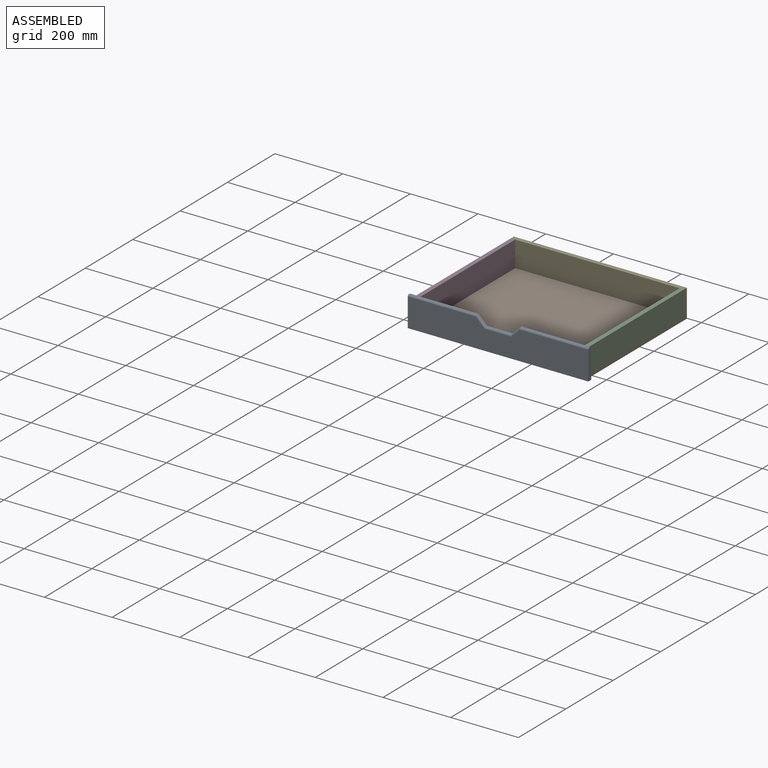
[diagram: assembled view]
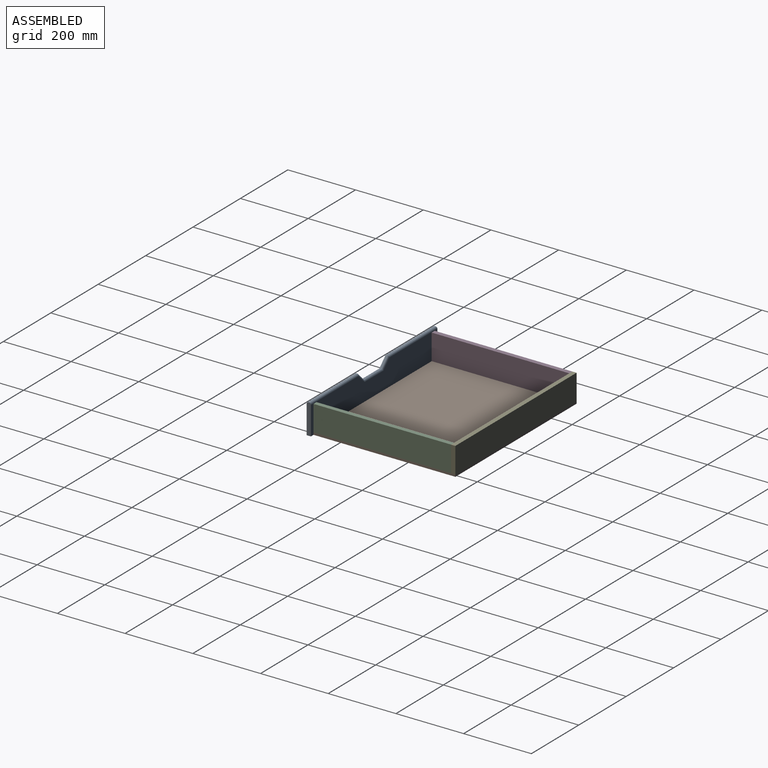
[diagram: assembled view, second angle]
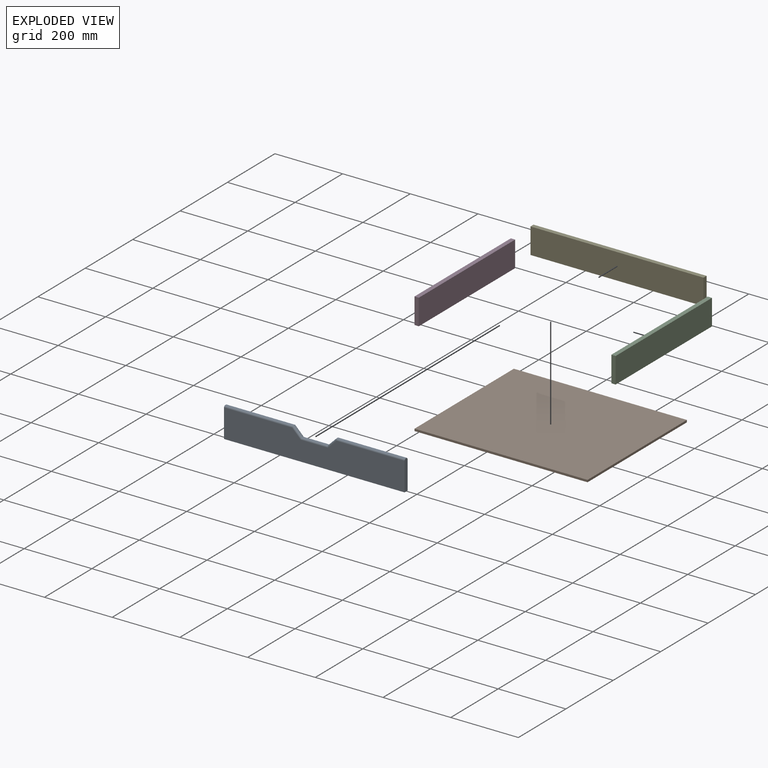
[diagram: exploded view]
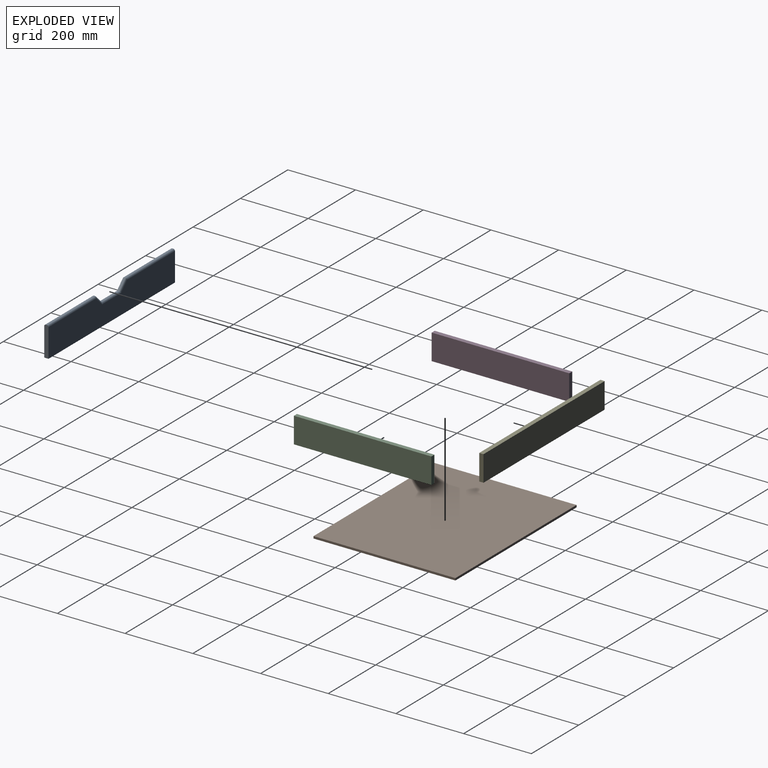
[diagram: exploded view, second angle]
ASSEMBLY  parts=5 mates=4
PART A: 20 faces, bbox 533.4x12.7x88.9 mm
  f0: plane 203.2x2.54mm, normal (0,0,1), area 516.1mm2, adj f6,f7,f14,f17
  f1: plane 533.4x83.82mm, normal (0,-1,0), area 42022.1mm2, adj f4,f5,f6,f10,f11,f12,f13,f14
  f2: plane 533.4x83.82mm, normal (0,1,0), area 42022.1mm2, adj f4,f5,f6,f15,f16,f17,f18,f19
  f3: plane 203.2x2.54mm, normal (0,0,1), area 516.1mm2, adj f4,f8,f10,f15
  f4: plane 88.9x12.7mm, normal (-1,0,0), area 1118mm2, adj f1,f2,f3,f5,f10,f15
  f5: plane 533.4x12.7mm, normal (0,0,-1), area 6774.2mm2, adj f1,f2,f4,f6
  f6: plane 88.9x12.7mm, normal (1,0,0), area 1118mm2, adj f0,f1,f2,f5,f14,f17
  f7: plane 25.4x25.4mm, normal (-0.71,0,0.71), area 91.2mm2, adj f0,f9,f13,f19
  f8: plane 25.4x25.4mm, normal (0.71,0,0.71), area 91.2mm2, adj f3,f9,f11,f16
  f9: plane 76.2x2.54mm, normal (0,0,1), area 193.5mm2, adj f7,f8,f12,f18
  f10: cylinder r=5.08mm len=203.2mm, axis (1,0,0), area 1615.4mm2, adj f1,f3,f4,f11
  f11: cylinder r=5.08mm len=30.48mm, axis (-0.71,0,0.71), area 286.6mm2, adj f1,f8,f10,f12
  f12: cylinder r=5.08mm len=80.41mm, axis (-1,0,0), area 620.3mm2, adj f1,f9,f11,f13
  f13: cylinder r=5.08mm len=30.48mm, axis (-0.71,0,-0.71), area 286.6mm2, adj f1,f7,f12,f14
  f14: cylinder r=5.08mm len=203.2mm, axis (1,0,0), area 1615.4mm2, adj f0,f1,f6,f13
  f15: cylinder r=5.08mm len=203.2mm, axis (-1,0,0), area 1615.4mm2, adj f2,f3,f4,f16
  f16: cylinder r=5.08mm len=30.48mm, axis (0.71,0,-0.71), area 286.6mm2, adj f2,f8,f15,f18
  f17: cylinder r=5.08mm len=203.2mm, axis (-1,0,0), area 1615.4mm2, adj f0,f2,f6,f19
  f18: cylinder r=5.08mm len=80.41mm, axis (1,0,0), area 620.3mm2, adj f2,f9,f16,f19
  f19: cylinder r=5.08mm len=30.48mm, axis (0.71,0,0.71), area 286.6mm2, adj f2,f7,f17,f18
PART B: 6 faces, bbox 511.2x419.1x6.4 mm
  f0: plane 511.18x6.35mm, normal (0,1,0), area 3246mm2, adj f1,f3,f4,f5
  f1: plane 419.1x6.35mm, normal (-1,0,0), area 2661.3mm2, adj f0,f2,f4,f5
  f2: plane 511.18x6.35mm, normal (0,-1,0), area 3246mm2, adj f1,f3,f4,f5
  f3: plane 419.1x6.35mm, normal (1,0,0), area 2661.3mm2, adj f0,f2,f4,f5
  f4: plane 511.18x419.1mm, normal (0,0,1), area 214233.4mm2, adj f0,f1,f2,f3
  f5: plane 511.18x419.1mm, normal (0,0,-1), area 214233.4mm2, adj f0,f1,f2,f3
PART C: 6 faces, bbox 406.4x12.7x76.2 mm
  f0: plane 406.4x12.7mm, normal (0,0,1), area 5161.3mm2, adj f1,f3,f4,f5
  f1: plane 76.2x12.7mm, normal (-1,0,0), area 967.7mm2, adj f0,f2,f4,f5
  f2: plane 406.4x12.7mm, normal (0,0,-1), area 5161.3mm2, adj f1,f3,f4,f5
  f3: plane 76.2x12.7mm, normal (1,0,0), area 967.7mm2, adj f0,f2,f4,f5
  f4: plane 406.4x76.2mm, normal (0,-1,0), area 30967.7mm2, adj f0,f1,f2,f3
  f5: plane 406.4x76.2mm, normal (0,1,0), area 30967.7mm2, adj f0,f1,f2,f3
PART D: same geometry as C
PART E: 6 faces, bbox 511.2x12.7x76.2 mm
  f0: plane 511.18x12.7mm, normal (0,0,1), area 6491.9mm2, adj f1,f3,f4,f5
  f1: plane 76.2x12.7mm, normal (-1,0,0), area 967.7mm2, adj f0,f2,f4,f5
  f2: plane 511.18x12.7mm, normal (0,0,-1), area 6491.9mm2, adj f1,f3,f4,f5
  f3: plane 76.2x12.7mm, normal (1,0,0), area 967.7mm2, adj f0,f2,f4,f5
  f4: plane 511.18x76.2mm, normal (0,-1,0), area 38951.5mm2, adj f0,f1,f2,f3
  f5: plane 511.18x76.2mm, normal (0,1,0), area 38951.5mm2, adj f0,f1,f2,f3
PLACE A t=(256.11,-125.34,-89.78)mm
PLACE B t=(256.11,84.21,-134.23)mm
PLACE C rot(axis=(0,0,1),90deg) t=(499,77.86,-89.78)mm
PLACE D rot(axis=(0,0,1),90deg) t=(0.52,77.86,-89.78)mm
PLACE E t=(256.11,293.76,-89.78)mm
MATE fastened B.f2 <-> A.f2  axis (0,-1,0) through (256.11,-125.34,-134.23)mm
MATE fastened C.f4 <-> B.f3  axis (1,0,0) through (511.7,-125.34,-127.88)mm
MATE fastened C.f4 <-> E.f3  axis (1,0,0) through (511.7,281.06,-89.78)mm
MATE fastened D.f5 <-> B.f1  axis (-1,0,0) through (0.52,-125.34,-127.88)mm
